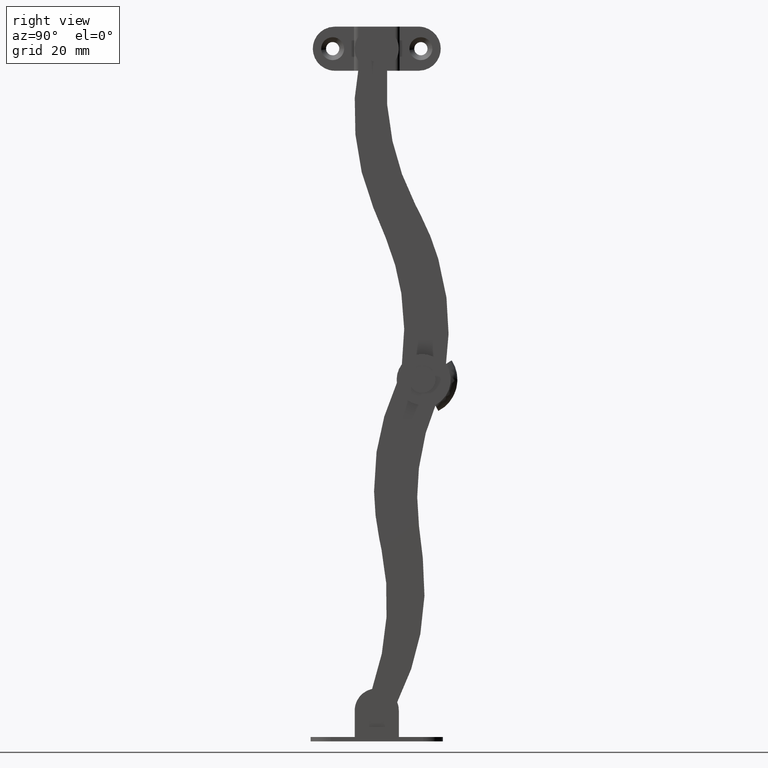
[diagram: clean part render]
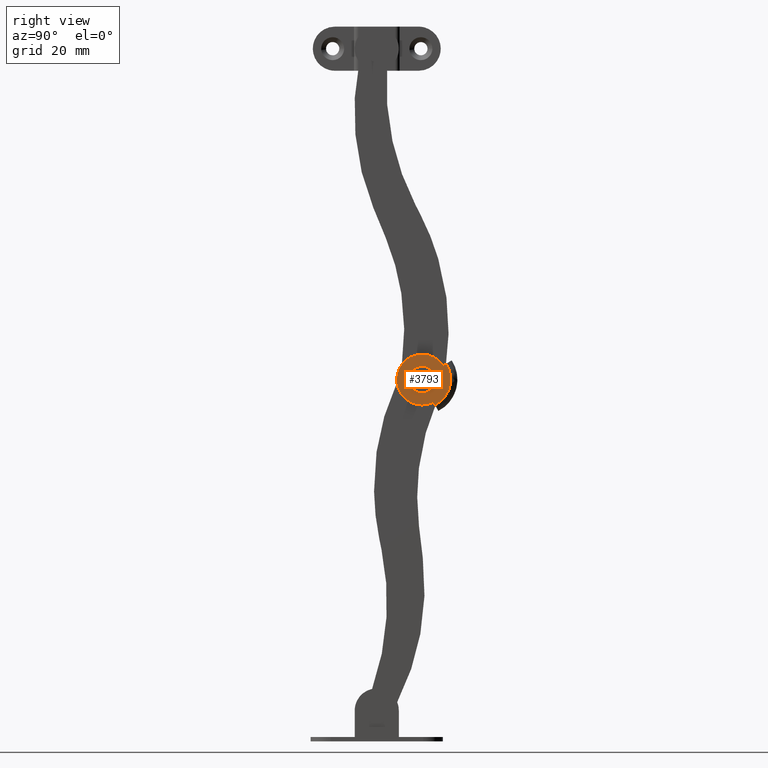
[diagram: same view with one face highlighted and labeled with its STEP entity id]
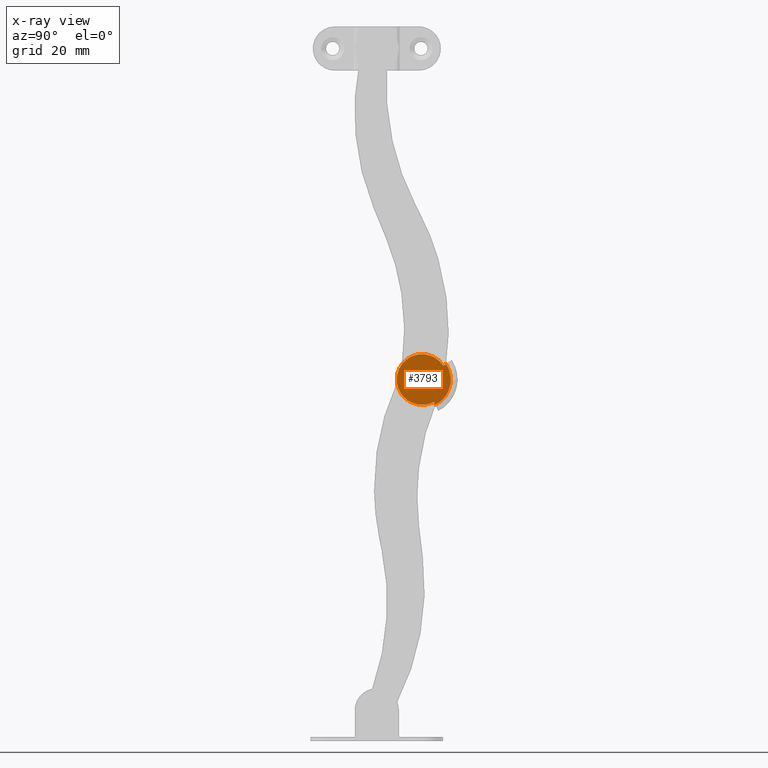
[diagram: x-ray of the same camera — body ghosted, the highlighted face saturated]
A machine part, right view. The second image highlights one B-rep face of the part: STEP entity #3793.
The next image is the same camera in x-ray: the body ghosted, the highlighted face saturated — about 0% of this face is hidden behind the body in this view.
In plain terms, the highlighted face is a freeform B-spline surface patch.
Its self-contained STEP definition (entity closure, byte-faithful):
#3367=CARTESIAN_POINT('',(8.500000000000000,8.781328710519759,0.177051352535859));
#3368=VERTEX_POINT('',#3367);
#3369=CARTESIAN_POINT('',(8.500000000000000,10.270842999999800,-1.499999999999999));
#3370=VERTEX_POINT('',#3369);
#3371=CARTESIAN_POINT('',(8.500000000000000,8.781328710519759,0.177051352535859));
#3372=CARTESIAN_POINT('',(8.500000000000000,8.770842999999799,0.088836180034409));
#3373=CARTESIAN_POINT('',(8.500000000000000,8.770842999999799,6.288870E-016));
#3374=CARTESIAN_POINT('',(8.500000000000002,8.770842999999799,-1.500000000000000));
#3375=CARTESIAN_POINT('',(8.500000000000000,10.270842999999800,-1.499999999999999));
#3383=(BOUNDED_CURVE()B_SPLINE_CURVE(2,(#3371,#3372,#3373,#3374,#3375),.UNSPECIFIED.,.F.,.U.)B_SPLINE_CURVE_WITH_KNOTS((3,2,3),(0.229562473390673,0.250000000000000,0.500000000000000),.UNSPECIFIED.)CURVE()GEOMETRIC_REPRESENTATION_ITEM()RATIONAL_B_SPLINE_CURVE((0.956026753942936,0.976055948187234,1.0,0.707106781186548,1.0))REPRESENTATION_ITEM(''));
#3384=EDGE_CURVE('',#3368,#3370,#3383,.T.);
#3386=CARTESIAN_POINT('',(8.500000000000000,11.768045197543380,-0.091572810761034));
#3387=VERTEX_POINT('',#3386);
#3388=CARTESIAN_POINT('',(8.500000000000000,10.270842999999800,-1.499999999999999));
#3389=CARTESIAN_POINT('',(8.500000000000000,11.681902097603571,-1.499999999999999));
#3390=CARTESIAN_POINT('',(8.500000000000000,11.768045197543380,-0.091572810761034));
#3398=(BOUNDED_CURVE()B_SPLINE_CURVE(2,(#3388,#3389,#3390),.UNSPECIFIED.,.F.,.U.)B_SPLINE_CURVE_WITH_KNOTS((3,3),(0.500000000000000,0.739332961905738),.UNSPECIFIED.)CURVE()GEOMETRIC_REPRESENTATION_ITEM()RATIONAL_B_SPLINE_CURVE((1.0,0.719603993677084,0.976072040952597))REPRESENTATION_ITEM(''));
#3399=EDGE_CURVE('',#3370,#3387,#3398,.T.);
#3466=CARTESIAN_POINT('',(8.500000000000000,10.270842999999800,1.500000000000001));
#3467=VERTEX_POINT('',#3466);
#3468=CARTESIAN_POINT('',(8.500000000000000,10.270842999999800,1.500000000000001));
#3469=CARTESIAN_POINT('',(8.500000000000002,8.938581212064841,1.500000000000001));
#3470=CARTESIAN_POINT('',(8.500000000000000,8.781328710519759,0.177051352535859));
#3478=(BOUNDED_CURVE()B_SPLINE_CURVE(2,(#3468,#3469,#3470),.UNSPECIFIED.,.F.,.U.)B_SPLINE_CURVE_WITH_KNOTS((3,3),(0.0,0.229562473390673),.UNSPECIFIED.)CURVE()GEOMETRIC_REPRESENTATION_ITEM()RATIONAL_B_SPLINE_CURVE((1.0,0.731050832999314,0.956026753942936))REPRESENTATION_ITEM(''));
#3479=EDGE_CURVE('',#3467,#3368,#3478,.T.);
#3513=CARTESIAN_POINT('',(8.500000000000000,11.768045197543374,-0.091572810761034));
#3514=CARTESIAN_POINT('',(8.500000000000000,11.770842999999800,-0.045829146410722));
#3515=CARTESIAN_POINT('',(8.500000000000000,11.770842999999800,6.288870E-016));
#3516=CARTESIAN_POINT('',(8.500000000000002,11.770842999999799,1.500000000000001));
#3517=CARTESIAN_POINT('',(8.500000000000000,10.270842999999800,1.500000000000001));
#3525=(BOUNDED_CURVE()B_SPLINE_CURVE(2,(#3513,#3514,#3515,#3516,#3517),.UNSPECIFIED.,.F.,.U.)B_SPLINE_CURVE_WITH_KNOTS((3,2,3),(0.739332961905738,0.750000000000000,1.0),.UNSPECIFIED.)CURVE()GEOMETRIC_REPRESENTATION_ITEM()RATIONAL_B_SPLINE_CURVE((0.976072040952596,0.987502787509464,1.0,0.707106781186548,1.0))REPRESENTATION_ITEM(''));
#3526=EDGE_CURVE('',#3387,#3467,#3525,.T.);
#3550=CARTESIAN_POINT('',(8.500000000000000,13.247896593032200,-5.778161637079120));
#3551=VERTEX_POINT('',#3550);
#3597=CARTESIAN_POINT('',(8.500000000000000,15.717093566326900,3.548007154556125));
#3598=VERTEX_POINT('',#3597);
#3627=CARTESIAN_POINT('',(8.500000000000000,13.247896593032200,-5.778161637079121));
#3628=CARTESIAN_POINT('',(8.500000000000000,15.815182494161483,-4.455431641564167));
#3629=CARTESIAN_POINT('',(8.500000000000000,16.554342767071390,-1.663619751388911));
#3630=CARTESIAN_POINT('',(8.500000000000000,17.293503039981289,1.128192138786349));
#3631=CARTESIAN_POINT('',(8.500000000000000,15.717093566326920,3.548007154556135));
#3639=(BOUNDED_CURVE()B_SPLINE_CURVE(2,(#3627,#3628,#3629,#3630,#3631),.UNSPECIFIED.,.F.,.U.)B_SPLINE_CURVE_WITH_KNOTS((3,2,3),(0.0,0.500000000000000,1.0),.UNSPECIFIED.)CURVE()GEOMETRIC_REPRESENTATION_ITEM()RATIONAL_B_SPLINE_CURVE((1.0,0.913857675299951,1.0,0.913857675299951,1.0))REPRESENTATION_ITEM(''));
#3640=EDGE_CURVE('',#3551,#3598,#3639,.T.);
#3748=CARTESIAN_POINT('',(8.500000000000000,3.915972566710830,6.310429518045173));
#3749=CARTESIAN_POINT('',(8.500000000000000,17.381046125189251,6.310429518045173));
#3750=CARTESIAN_POINT('',(8.500000000000000,3.915972566710830,-6.353260860970138));
#3751=CARTESIAN_POINT('',(8.500000000000000,17.381046125189251,-6.353260860970138));
#3752=B_SPLINE_SURFACE_WITH_KNOTS('',1,1,((#3748,#3750),(#3749,#3751)),.UNSPECIFIED.,.F.,.F.,.U.,(2,2),(2,2),(0.0,13.465073558478419),(0.0,12.663690379015311),.UNSPECIFIED.);
#3753=CARTESIAN_POINT('',(8.500000000000000,12.899231265610499,-5.114105505872939));
#3754=VERTEX_POINT('',#3753);
#3755=CARTESIAN_POINT('',(8.500000000000000,12.899231265610499,-5.114105505872939));
#3756=CARTESIAN_POINT('',(8.500000000000000,13.247896593032200,-5.778161637079120));
#3757=QUASI_UNIFORM_CURVE('',1,(#3755,#3756),.UNSPECIFIED.,.F.,.U.);
#3758=EDGE_CURVE('',#3754,#3551,#3757,.T.);
#3759=ORIENTED_EDGE('',*,*,#3758,.T.);
#3760=ORIENTED_EDGE('',*,*,#3640,.T.);
#3761=CARTESIAN_POINT('',(8.500000000000000,15.088679375744549,3.138622732433865));
#3762=VERTEX_POINT('',#3761);
#3763=CARTESIAN_POINT('',(8.500000000000000,15.717093566326900,3.548007154556125));
#3764=CARTESIAN_POINT('',(8.500000000000000,15.088679375744549,3.138622732433865));
#3765=QUASI_UNIFORM_CURVE('',1,(#3763,#3764),.UNSPECIFIED.,.F.,.U.);
#3766=EDGE_CURVE('',#3598,#3762,#3765,.T.);
#3767=ORIENTED_EDGE('',*,*,#3766,.T.);
#3768=CARTESIAN_POINT('',(8.500000000000000,15.088679375744560,3.138622732433866));
#3769=CARTESIAN_POINT('',(8.500000000000000,12.055659553479426,7.794356942557428));
#3770=CARTESIAN_POINT('',(8.500000000000000,7.298885253775735,4.922394453379248));
#3771=CARTESIAN_POINT('',(8.500000000000000,2.542110954072038,2.050431964201064));
#3772=CARTESIAN_POINT('',(8.500000000000000,5.249653613507838,-2.801813188808361));
#3773=CARTESIAN_POINT('',(8.500000000000000,7.957196272943632,-7.654058341817780));
#3774=CARTESIAN_POINT('',(8.500000000000000,12.899231265610499,-5.114105505872943));
#3782=(BOUNDED_CURVE()B_SPLINE_CURVE(2,(#3768,#3769,#3770,#3771,#3772,#3773,#3774),.UNSPECIFIED.,.F.,.U.)B_SPLINE_CURVE_WITH_KNOTS((3,2,2,3),(0.0,0.333333333333333,0.666666666666667,1.0),.UNSPECIFIED.)CURVE()GEOMETRIC_REPRESENTATION_ITEM()RATIONAL_B_SPLINE_CURVE((1.0,0.719100814199370,1.0,0.719100814199370,1.0,0.719100814199370,1.0))REPRESENTATION_ITEM(''));
#3783=EDGE_CURVE('',#3762,#3754,#3782,.T.);
#3784=ORIENTED_EDGE('',*,*,#3783,.T.);
#3785=EDGE_LOOP('',(#3759,#3760,#3767,#3784));
#3786=FACE_OUTER_BOUND('',#3785,.T.);
#3787=ORIENTED_EDGE('',*,*,#3399,.F.);
#3788=ORIENTED_EDGE('',*,*,#3384,.F.);
#3789=ORIENTED_EDGE('',*,*,#3479,.F.);
#3790=ORIENTED_EDGE('',*,*,#3526,.F.);
#3791=EDGE_LOOP('',(#3787,#3788,#3789,#3790));
#3792=FACE_BOUND('',#3791,.T.);
#3793=ADVANCED_FACE('',(#3786,#3792),#3752,.F.);